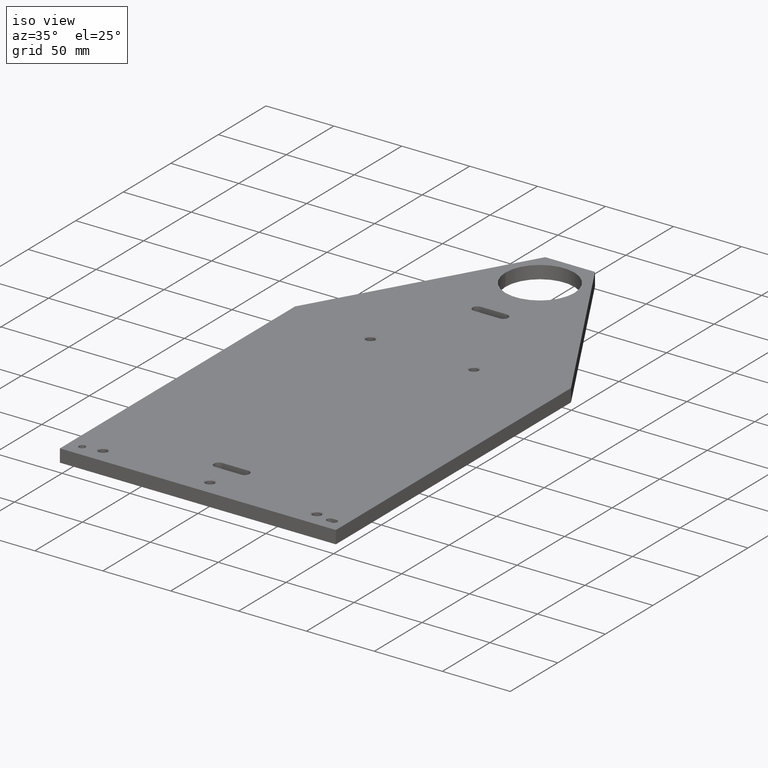
[diagram: clean part render]
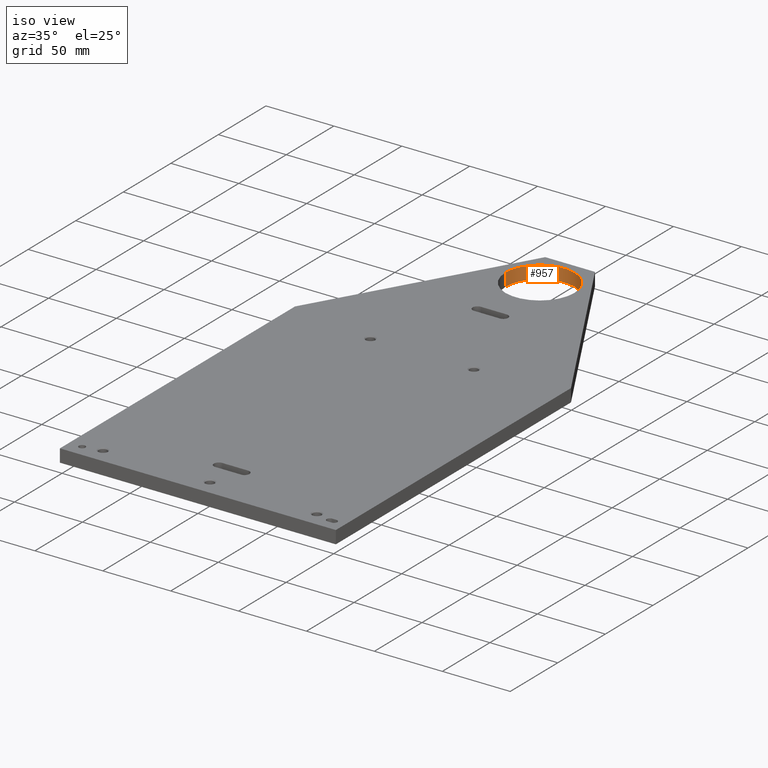
[diagram: same view with one face highlighted and labeled with its STEP entity id]
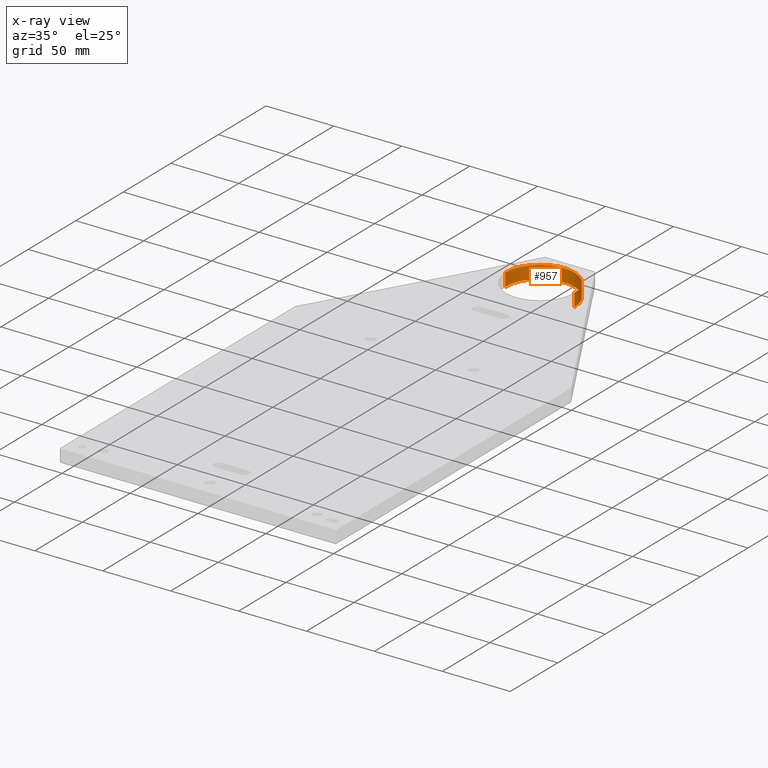
[diagram: x-ray of the same camera — body ghosted, the highlighted face saturated]
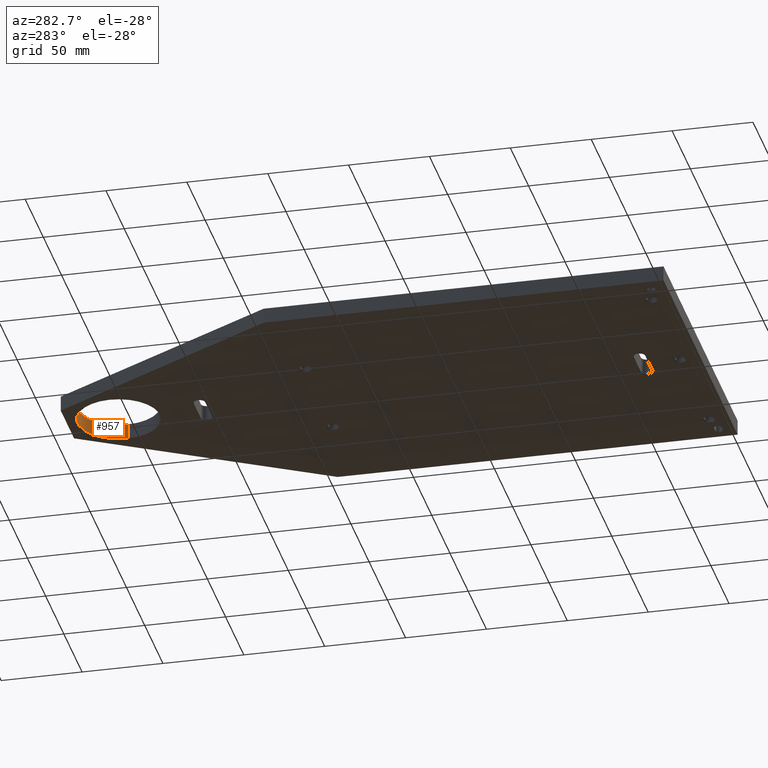
[diagram: same view with one face highlighted and labeled with its STEP entity id]
A machine part, iso view. The second image highlights one B-rep face of the part: STEP entity #957.
The next image is the same camera in x-ray: the body ghosted, the highlighted face saturated — about 0% of this face is hidden behind the body in this view.
A second angle (auxiliary view) of the same face is appended — the face is thin or edge-on in the first view.
In plain terms, the highlighted cylindrical surface (partial cylindrical patch) has radius 25.4 mm, axis along (0, 0, 1).
Its self-contained STEP definition (entity closure, byte-faithful):
#3 = CYLINDRICAL_SURFACE ( 'NONE', #886, 0.9999999999999990000 ) ;
#142 = LINE ( 'NONE', #1609, #397 ) ;
#158 = CARTESIAN_POINT ( 'NONE',  ( 0.0000000000000000000, 14.16150000000001100, 0.1875000000000000300 ) ) ;
#159 = DIRECTION ( 'NONE',  ( 0.0000000000000000000, 0.0000000000000000000, 1.000000000000000000 ) ) ;
#161 = DIRECTION ( 'NONE',  ( 1.000000000000000000, 0.0000000000000000000, 0.0000000000000000000 ) ) ;
#274 = CARTESIAN_POINT ( 'NONE',  ( 0.9999999999999990000, 14.16150000000001100, 0.1875000000000000300 ) ) ;
#287 = CARTESIAN_POINT ( 'NONE',  ( -0.9999999999999990000, 14.16150000000001100, 0.1875000000000000300 ) ) ;
#290 = CARTESIAN_POINT ( 'NONE',  ( -0.9999999999999990000, 14.16150000000001100, -0.1875000000000000300 ) ) ;
#300 = CARTESIAN_POINT ( 'NONE',  ( 0.9999999999999990000, 14.16150000000001100, -0.1875000000000000300 ) ) ;
#327 = CARTESIAN_POINT ( 'NONE',  ( -0.9999999999999990000, 14.16150000000001100, -0.1875000000000000300 ) ) ;
#328 = DIRECTION ( 'NONE',  ( 0.0000000000000000000, 0.0000000000000000000, 1.000000000000000000 ) ) ;
#397 = VECTOR ( 'NONE', #1582, 39.37007874015748100 ) ;
#412 = CIRCLE ( 'NONE', #1515, 0.9999999999999990000 ) ;
#457 = CIRCLE ( 'NONE', #1531, 0.9999999999999990000 ) ;
#514 = LINE ( 'NONE', #327, #516 ) ;
#516 = VECTOR ( 'NONE', #328, 39.37007874015748100 ) ;
#599 = VERTEX_POINT ( 'NONE', #290 ) ;
#600 = VERTEX_POINT ( 'NONE', #300 ) ;
#605 = VERTEX_POINT ( 'NONE', #287 ) ;
#606 = VERTEX_POINT ( 'NONE', #274 ) ;
#690 = FACE_OUTER_BOUND ( 'NONE', #1025, .T. ) ;
#751 = ORIENTED_EDGE ( 'NONE', *, *, #1803, .F. ) ;
#752 = ORIENTED_EDGE ( 'NONE', *, *, #1768, .F. ) ;
#753 = ORIENTED_EDGE ( 'NONE', *, *, #1272, .T. ) ;
#754 = ORIENTED_EDGE ( 'NONE', *, *, #1284, .T. ) ;
#886 = AXIS2_PLACEMENT_3D ( 'NONE', #1378, #1374, #1390 ) ;
#957 = ADVANCED_FACE ( 'NONE', ( #690 ), #3, .F. ) ;
#1025 = EDGE_LOOP ( 'NONE', ( #751, #752, #753, #754 ) ) ;
#1272 = EDGE_CURVE ( 'NONE', #600, #606, #142, .T. ) ;
#1284 = EDGE_CURVE ( 'NONE', #606, #605, #412, .T. ) ;
#1374 = DIRECTION ( 'NONE',  ( 0.0000000000000000000, 0.0000000000000000000, 1.000000000000000000 ) ) ;
#1378 = CARTESIAN_POINT ( 'NONE',  ( 0.0000000000000000000, 14.16150000000001100, -0.1875000000000000300 ) ) ;
#1390 = DIRECTION ( 'NONE',  ( 1.000000000000000000, 0.0000000000000000000, 0.0000000000000000000 ) ) ;
#1515 = AXIS2_PLACEMENT_3D ( 'NONE', #158, #159, #161 ) ;
#1531 = AXIS2_PLACEMENT_3D ( 'NONE', #1688, #1689, #1690 ) ;
#1582 = DIRECTION ( 'NONE',  ( 0.0000000000000000000, 0.0000000000000000000, 1.000000000000000000 ) ) ;
#1609 = CARTESIAN_POINT ( 'NONE',  ( 0.9999999999999990000, 14.16150000000001100, -0.1875000000000000300 ) ) ;
#1688 = CARTESIAN_POINT ( 'NONE',  ( 0.0000000000000000000, 14.16150000000001100, -0.1875000000000000300 ) ) ;
#1689 = DIRECTION ( 'NONE',  ( 0.0000000000000000000, 0.0000000000000000000, 1.000000000000000000 ) ) ;
#1690 = DIRECTION ( 'NONE',  ( 1.000000000000000000, 0.0000000000000000000, 0.0000000000000000000 ) ) ;
#1768 = EDGE_CURVE ( 'NONE', #600, #599, #457, .T. ) ;
#1803 = EDGE_CURVE ( 'NONE', #599, #605, #514, .T. ) ;